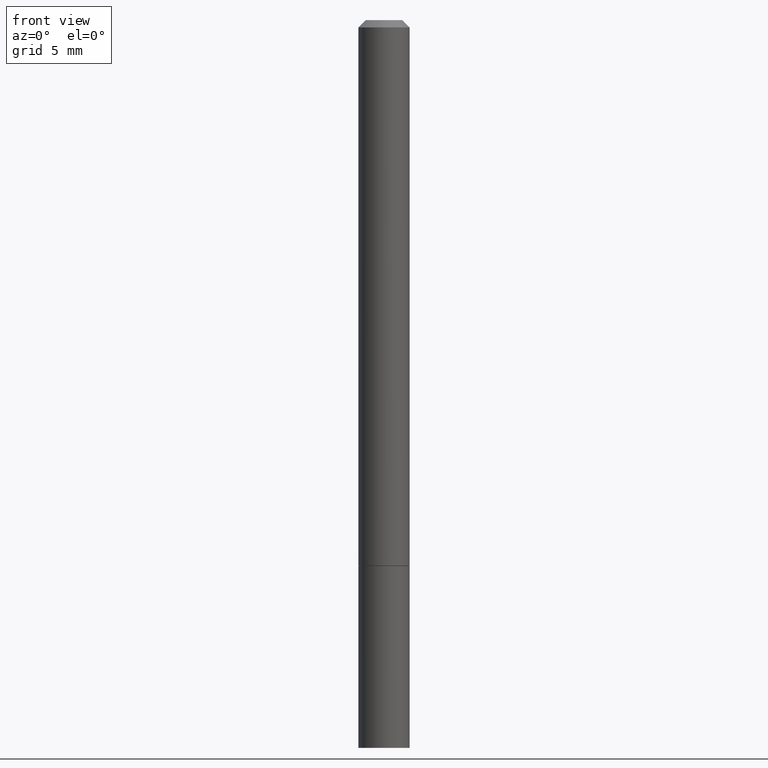
[diagram: clean part render]
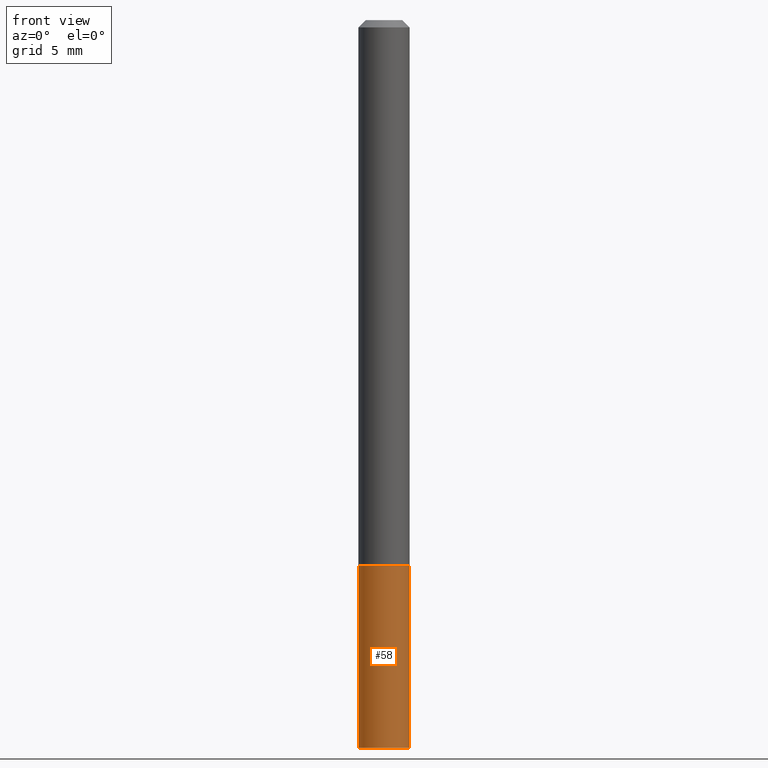
[diagram: same view with one face highlighted and labeled with its STEP entity id]
A machine part, front view. The second image highlights one B-rep face of the part: STEP entity #58.
In plain terms, the highlighted cylindrical surface (edge-blend (fillet) strip) has radius 1.7856 mm, axis along (-0, 0, 1).
Its self-contained STEP definition (entity closure, byte-faithful):
#3 = CARTESIAN_POINT ( 'NONE',  ( -0.07030000000000004301, -6.492060401444947007E-15, -2.000000000000000000 ) ) ;
#6 = CARTESIAN_POINT ( 'NONE',  ( 0.07030000000000000138, -5.728124284506062335E-15, -1.499999999999999778 ) ) ;
#17 = CARTESIAN_POINT ( 'NONE',  ( 0.07030000000000000138, -4.909022762413445529E-16, 3.427952273384543137E-30 ) ) ;
#26 = EDGE_LOOP ( 'NONE', ( #184, #120, #174, #325 ) ) ;
#34 = VECTOR ( 'NONE', #87, 39.37007874015748143 ) ;
#46 = VERTEX_POINT ( 'NONE', #192 ) ;
#48 = CARTESIAN_POINT ( 'NONE',  ( 3.668203209277704335E-29, -5.237222008264717388E-15, -1.499999999999999778 ) ) ;
#54 = AXIS2_PLACEMENT_3D ( 'NONE', #225, #336, #199 ) ;
#58 = ADVANCED_FACE ( 'NONE', ( #99 ), #327, .T. ) ;
#80 = AXIS2_PLACEMENT_3D ( 'NONE', #48, #293, #347 ) ;
#87 = DIRECTION ( 'NONE',  ( -2.445468806185136877E-29, 3.491481338843145188E-15, 1.000000000000000000 ) ) ;
#90 = VERTEX_POINT ( 'NONE', #273 ) ;
#99 = FACE_OUTER_BOUND ( 'NONE', #26, .T. ) ;
#103 = LINE ( 'NONE', #282, #168 ) ;
#120 = ORIENTED_EDGE ( 'NONE', *, *, #294, .T. ) ;
#135 = CIRCLE ( 'NONE', #54, 0.07030000000000000138 ) ;
#168 = VECTOR ( 'NONE', #340, 39.37007874015748143 ) ;
#174 = ORIENTED_EDGE ( 'NONE', *, *, #388, .T. ) ;
#184 = ORIENTED_EDGE ( 'NONE', *, *, #211, .F. ) ;
#185 = AXIS2_PLACEMENT_3D ( 'NONE', #302, #358, #364 ) ;
#192 = CARTESIAN_POINT ( 'NONE',  ( 0.07030000000000004301, -7.465255686929629633E-15, -2.000000000000000000 ) ) ;
#199 = DIRECTION ( 'NONE',  ( 1.000000000000000000, -6.982962677686265133E-15, 0.000000000000000000 ) ) ;
#211 = EDGE_CURVE ( 'NONE', #304, #90, #103, .T. ) ;
#212 = VERTEX_POINT ( 'NONE', #6 ) ;
#225 = CARTESIAN_POINT ( 'NONE',  ( 4.890937612370273194E-29, -6.982962677686291165E-15, -2.000000000000000000 ) ) ;
#273 = CARTESIAN_POINT ( 'NONE',  ( -0.07030000000000000138, -5.610580799736154033E-15, -1.499999999999999778 ) ) ;
#282 = CARTESIAN_POINT ( 'NONE',  ( -0.07030000000000000138, 4.995115432393504404E-16, -3.458011368449198869E-30 ) ) ;
#293 = DIRECTION ( 'NONE',  ( -2.445468806185136597E-29, 3.491481338843145583E-15, 1.000000000000000000 ) ) ;
#294 = EDGE_CURVE ( 'NONE', #304, #46, #135, .T. ) ;
#302 = CARTESIAN_POINT ( 'NONE',  ( 0.000000000000000000, 0.000000000000000000, 0.000000000000000000 ) ) ;
#304 = VERTEX_POINT ( 'NONE', #3 ) ;
#325 = ORIENTED_EDGE ( 'NONE', *, *, #363, .F. ) ;
#327 = CYLINDRICAL_SURFACE ( 'NONE', #185, 0.07030000000000000138 ) ;
#336 = DIRECTION ( 'NONE',  ( -2.445468806185136597E-29, 3.491481338843145583E-15, 1.000000000000000000 ) ) ;
#337 = CIRCLE ( 'NONE', #80, 0.07030000000000000138 ) ;
#340 = DIRECTION ( 'NONE',  ( -2.445468806185136877E-29, 3.491481338843145188E-15, 1.000000000000000000 ) ) ;
#347 = DIRECTION ( 'NONE',  ( 1.000000000000000000, -6.982962677686265133E-15, 0.000000000000000000 ) ) ;
#358 = DIRECTION ( 'NONE',  ( -2.445468806185136597E-29, 3.491481338843145583E-15, 1.000000000000000000 ) ) ;
#363 = EDGE_CURVE ( 'NONE', #90, #212, #337, .T. ) ;
#364 = DIRECTION ( 'NONE',  ( 1.000000000000000000, -6.982962677686266711E-15, 4.876176775795936353E-29 ) ) ;
#374 = LINE ( 'NONE', #17, #34 ) ;
#388 = EDGE_CURVE ( 'NONE', #46, #212, #374, .T. ) ;